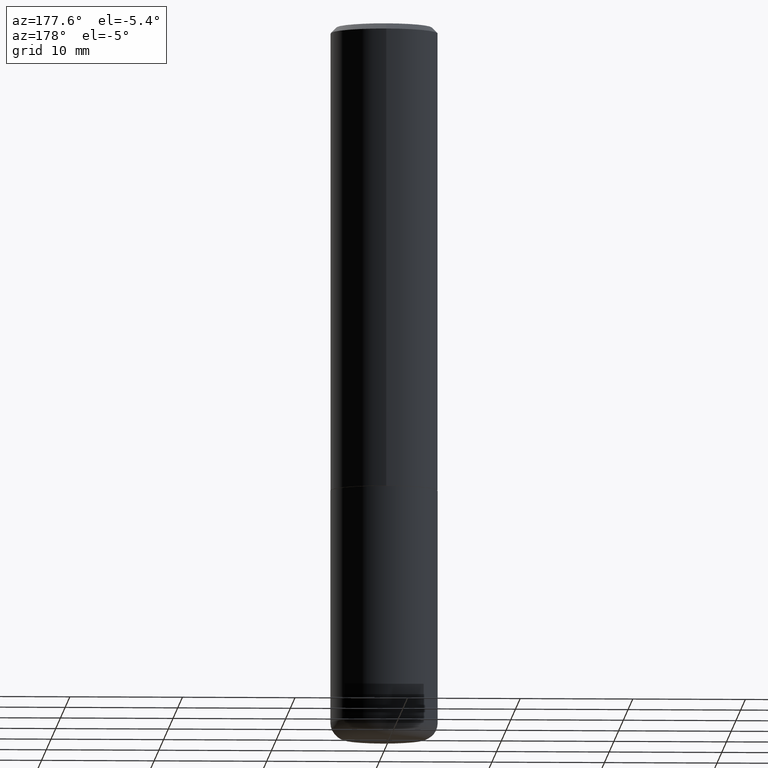
[diagram: clean part render]
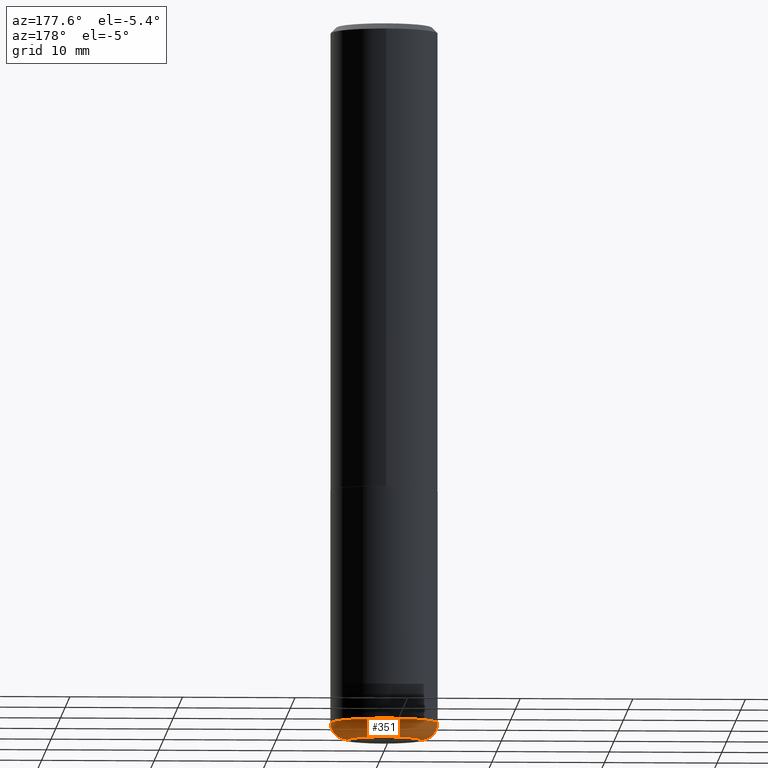
[diagram: same view with one face highlighted and labeled with its STEP entity id]
A machine part, auxiliary view. The second image highlights one B-rep face of the part: STEP entity #351.
In plain terms, the highlighted toroidal blend (fillet) surface has major radius 3.2385 mm and minor (blend) radius 1.524 mm.
Its self-contained STEP definition (entity closure, byte-faithful):
#6 = CIRCLE ( 'NONE', #154, 0.06000000000000021289 ) ;
#13 = VERTEX_POINT ( 'NONE', #418 ) ;
#16 = CARTESIAN_POINT ( 'NONE',  ( -0.1875000000000001110, -7.186946837227087200E-15, -2.440000000000000391 ) ) ;
#30 = EDGE_LOOP ( 'NONE', ( #291, #160, #71, #289 ) ) ;
#31 = DIRECTION ( 'NONE',  ( -2.445468806185136597E-29, 3.491481338843145583E-15, 1.000000000000000000 ) ) ;
#52 = DIRECTION ( 'NONE',  ( -6.982962677686266711E-15, -1.000000000000000000, 3.491481338843145583E-15 ) ) ;
#60 = FACE_OUTER_BOUND ( 'NONE', #30, .T. ) ;
#71 = ORIENTED_EDGE ( 'NONE', *, *, #236, .F. ) ;
#76 = AXIS2_PLACEMENT_3D ( 'NONE', #119, #403, #337 ) ;
#89 = CIRCLE ( 'NONE', #258, 0.1275000000000000022 ) ;
#94 = DIRECTION ( 'NONE',  ( 7.105427357601001859E-15, 1.000000000000000000, -3.491481338843145583E-15 ) ) ;
#119 = CARTESIAN_POINT ( 'NONE',  ( 5.966943887091733341E-29, -8.519214466777275048E-15, -2.440000000000000391 ) ) ;
#125 = DIRECTION ( 'NONE',  ( -1.000000000000000000, 7.105427357600997914E-15, 0.000000000000000000 ) ) ;
#154 = AXIS2_PLACEMENT_3D ( 'NONE', #180, #52, #234 ) ;
#160 = ORIENTED_EDGE ( 'NONE', *, *, #200, .T. ) ;
#164 = CARTESIAN_POINT ( 'NONE',  ( 0.1875000000000001110, -9.828519968843450056E-15, -2.440000000000000391 ) ) ;
#167 = DIRECTION ( 'NONE',  ( 1.000000000000000000, -6.982962677686267499E-15, 0.000000000000000000 ) ) ;
#180 = CARTESIAN_POINT ( 'NONE',  ( 0.1275000000000000022, -9.409542208182273423E-15, -2.440000000000000391 ) ) ;
#190 = DIRECTION ( 'NONE',  ( 1.000000000000000000, -6.982962677686265133E-15, 4.883557194083112340E-29 ) ) ;
#192 = CARTESIAN_POINT ( 'NONE',  ( 6.113672015462842613E-29, -8.728703347107866520E-15, -2.500000000000000444 ) ) ;
#200 = EDGE_CURVE ( 'NONE', #358, #259, #249, .T. ) ;
#207 = TOROIDAL_SURFACE ( 'NONE', #377, 0.1275000000000000022, 0.06000000000000021289 ) ;
#209 = EDGE_CURVE ( 'NONE', #13, #358, #89, .T. ) ;
#225 = CIRCLE ( 'NONE', #76, 0.1874999999999999722 ) ;
#234 = DIRECTION ( 'NONE',  ( 1.000000000000000000, -6.982962677686275388E-15, 0.000000000000000000 ) ) ;
#236 = EDGE_CURVE ( 'NONE', #348, #259, #225, .T. ) ;
#249 = CIRCLE ( 'NONE', #363, 0.06000000000000021289 ) ;
#256 = DIRECTION ( 'NONE',  ( -2.445468806185136597E-29, 3.491481338843145583E-15, 1.000000000000000000 ) ) ;
#258 = AXIS2_PLACEMENT_3D ( 'NONE', #192, #31, #167 ) ;
#259 = VERTEX_POINT ( 'NONE', #16 ) ;
#273 = EDGE_CURVE ( 'NONE', #13, #348, #6, .T. ) ;
#286 = CARTESIAN_POINT ( 'NONE',  ( 5.966943887091733341E-29, -8.519214466777275048E-15, -2.440000000000000391 ) ) ;
#289 = ORIENTED_EDGE ( 'NONE', *, *, #273, .F. ) ;
#291 = ORIENTED_EDGE ( 'NONE', *, *, #209, .T. ) ;
#319 = CARTESIAN_POINT ( 'NONE',  ( -0.1275000000000000022, -7.504854098120410814E-15, -2.500000000000000444 ) ) ;
#337 = DIRECTION ( 'NONE',  ( 1.000000000000000000, -6.982962677686263555E-15, 0.000000000000000000 ) ) ;
#348 = VERTEX_POINT ( 'NONE', #164 ) ;
#351 = ADVANCED_FACE ( 'NONE', ( #60 ), #207, .T. ) ;
#358 = VERTEX_POINT ( 'NONE', #319 ) ;
#363 = AXIS2_PLACEMENT_3D ( 'NONE', #390, #94, #125 ) ;
#377 = AXIS2_PLACEMENT_3D ( 'NONE', #286, #256, #190 ) ;
#390 = CARTESIAN_POINT ( 'NONE',  ( -0.1275000000000000022, -7.613272478683147690E-15, -2.440000000000000391 ) ) ;
#403 = DIRECTION ( 'NONE',  ( -2.445468806185136597E-29, 3.491481338843145583E-15, 1.000000000000000000 ) ) ;
#418 = CARTESIAN_POINT ( 'NONE',  ( 0.1275000000000000022, -9.619031088512866473E-15, -2.500000000000000444 ) ) ;